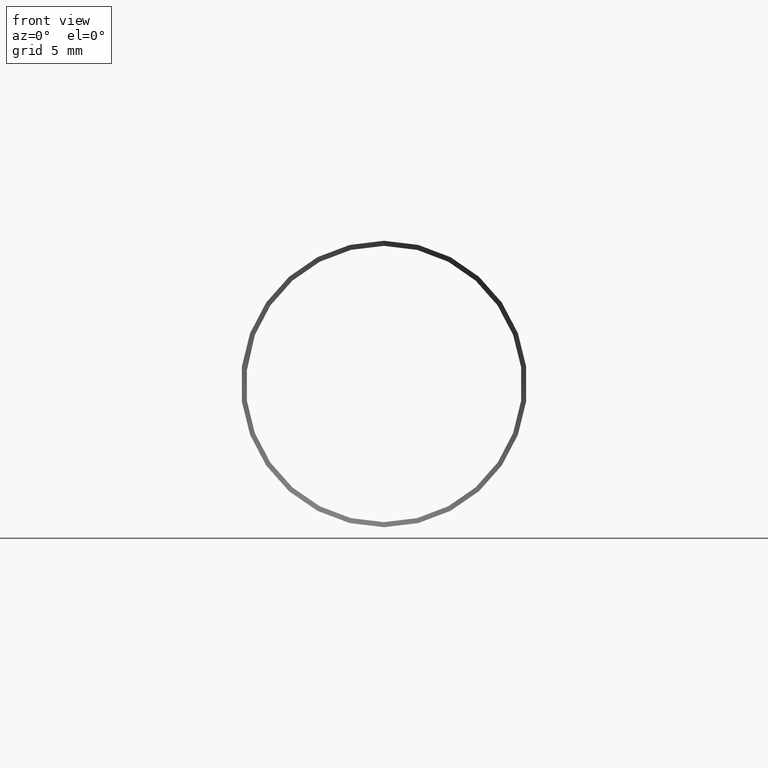
[diagram: clean part render]
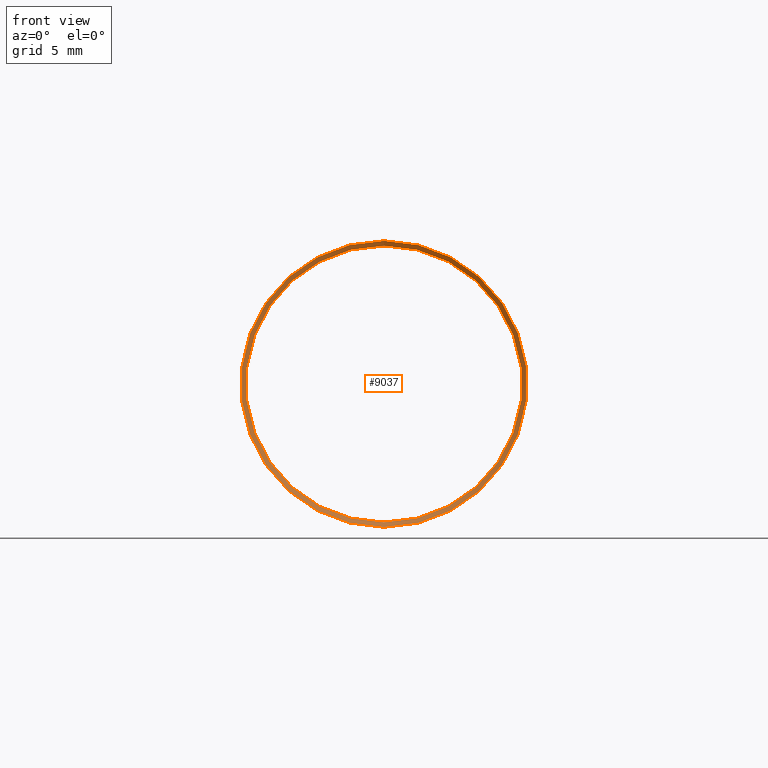
[diagram: same view with one face highlighted and labeled with its STEP entity id]
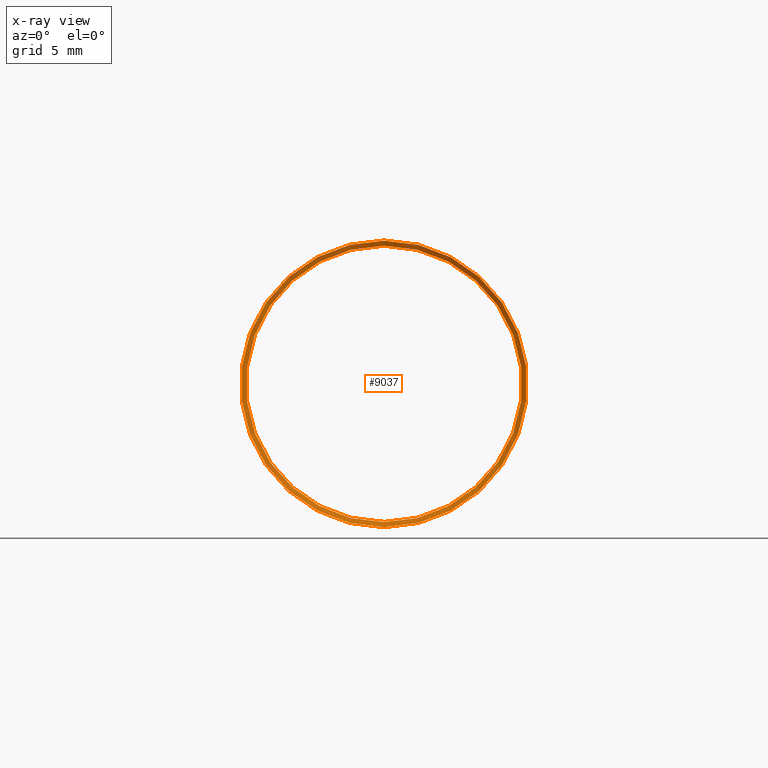
[diagram: x-ray of the same camera — body ghosted, the highlighted face saturated]
A machine part, front view. The second image highlights one B-rep face of the part: STEP entity #9037.
The next image is the same camera in x-ray: the body ghosted, the highlighted face saturated — about 0% of this face is hidden behind the body in this view.
In plain terms, the highlighted conical surface has half-angle 57.102 deg.
Its self-contained STEP definition (entity closure, byte-faithful):
#175 = CARTESIAN_POINT ( 'NONE',  ( 1.836970198721029600E-015, -13.43128283458827200, 0.0000000000000000000 ) ) ;
#764 = DIRECTION ( 'NONE',  ( 0.0000000000000000000, 1.000000000000000000, 0.0000000000000000000 ) ) ;
#1497 = EDGE_LOOP ( 'NONE', ( #5654 ) ) ;
#1641 = DIRECTION ( 'NONE',  ( 0.0000000000000000000, 0.0000000000000000000, 1.000000000000000000 ) ) ;
#1740 = DIRECTION ( 'NONE',  ( -0.0000000000000000000, -1.000000000000000000, -0.0000000000000000000 ) ) ;
#1968 = DIRECTION ( 'NONE',  ( 0.0000000000000000000, 0.0000000000000000000, -1.000000000000000000 ) ) ;
#2179 = VERTEX_POINT ( 'NONE', #9457 ) ;
#2664 = CIRCLE ( 'NONE', #8105, 6.150000000000001200 ) ;
#2714 = EDGE_LOOP ( 'NONE', ( #7399 ) ) ;
#3337 = CIRCLE ( 'NONE', #8044, 6.375960069652606400 ) ;
#4637 = CONICAL_SURFACE ( 'NONE', #7857, 6.375960069652606400, 0.9966251944908309800 ) ;
#5604 = CARTESIAN_POINT ( 'NONE',  ( 0.0000000000000000000, -13.57744943611264400, 6.375960069652606400 ) ) ;
#5654 = ORIENTED_EDGE ( 'NONE', *, *, #9537, .F. ) ;
#6676 = CARTESIAN_POINT ( 'NONE',  ( 0.0000000000000000000, -13.57744943611264400, 0.0000000000000000000 ) ) ;
#7243 = DIRECTION ( 'NONE',  ( -0.0000000000000000000, -1.000000000000000000, -0.0000000000000000000 ) ) ;
#7399 = ORIENTED_EDGE ( 'NONE', *, *, #7583, .F. ) ;
#7466 = FACE_OUTER_BOUND ( 'NONE', #1497, .T. ) ;
#7583 = EDGE_CURVE ( 'NONE', #2179, #2179, #2664, .T. ) ;
#7857 = AXIS2_PLACEMENT_3D ( 'NONE', #9489, #7243, #1968 ) ;
#8044 = AXIS2_PLACEMENT_3D ( 'NONE', #6676, #764, #9175 ) ;
#8105 = AXIS2_PLACEMENT_3D ( 'NONE', #175, #1740, #1641 ) ;
#9037 = ADVANCED_FACE ( 'NONE', ( #9212, #7466 ), #4637, .F. ) ;
#9094 = VERTEX_POINT ( 'NONE', #5604 ) ;
#9175 = DIRECTION ( 'NONE',  ( 0.0000000000000000000, 0.0000000000000000000, 1.000000000000000000 ) ) ;
#9212 = FACE_BOUND ( 'NONE', #2714, .T. ) ;
#9457 = CARTESIAN_POINT ( 'NONE',  ( 1.836970198721029600E-015, -13.43128283458827200, 6.150000000000001200 ) ) ;
#9489 = CARTESIAN_POINT ( 'NONE',  ( 1.836970198721029600E-015, -13.57744943611264400, 0.0000000000000000000 ) ) ;
#9537 = EDGE_CURVE ( 'NONE', #9094, #9094, #3337, .T. ) ;